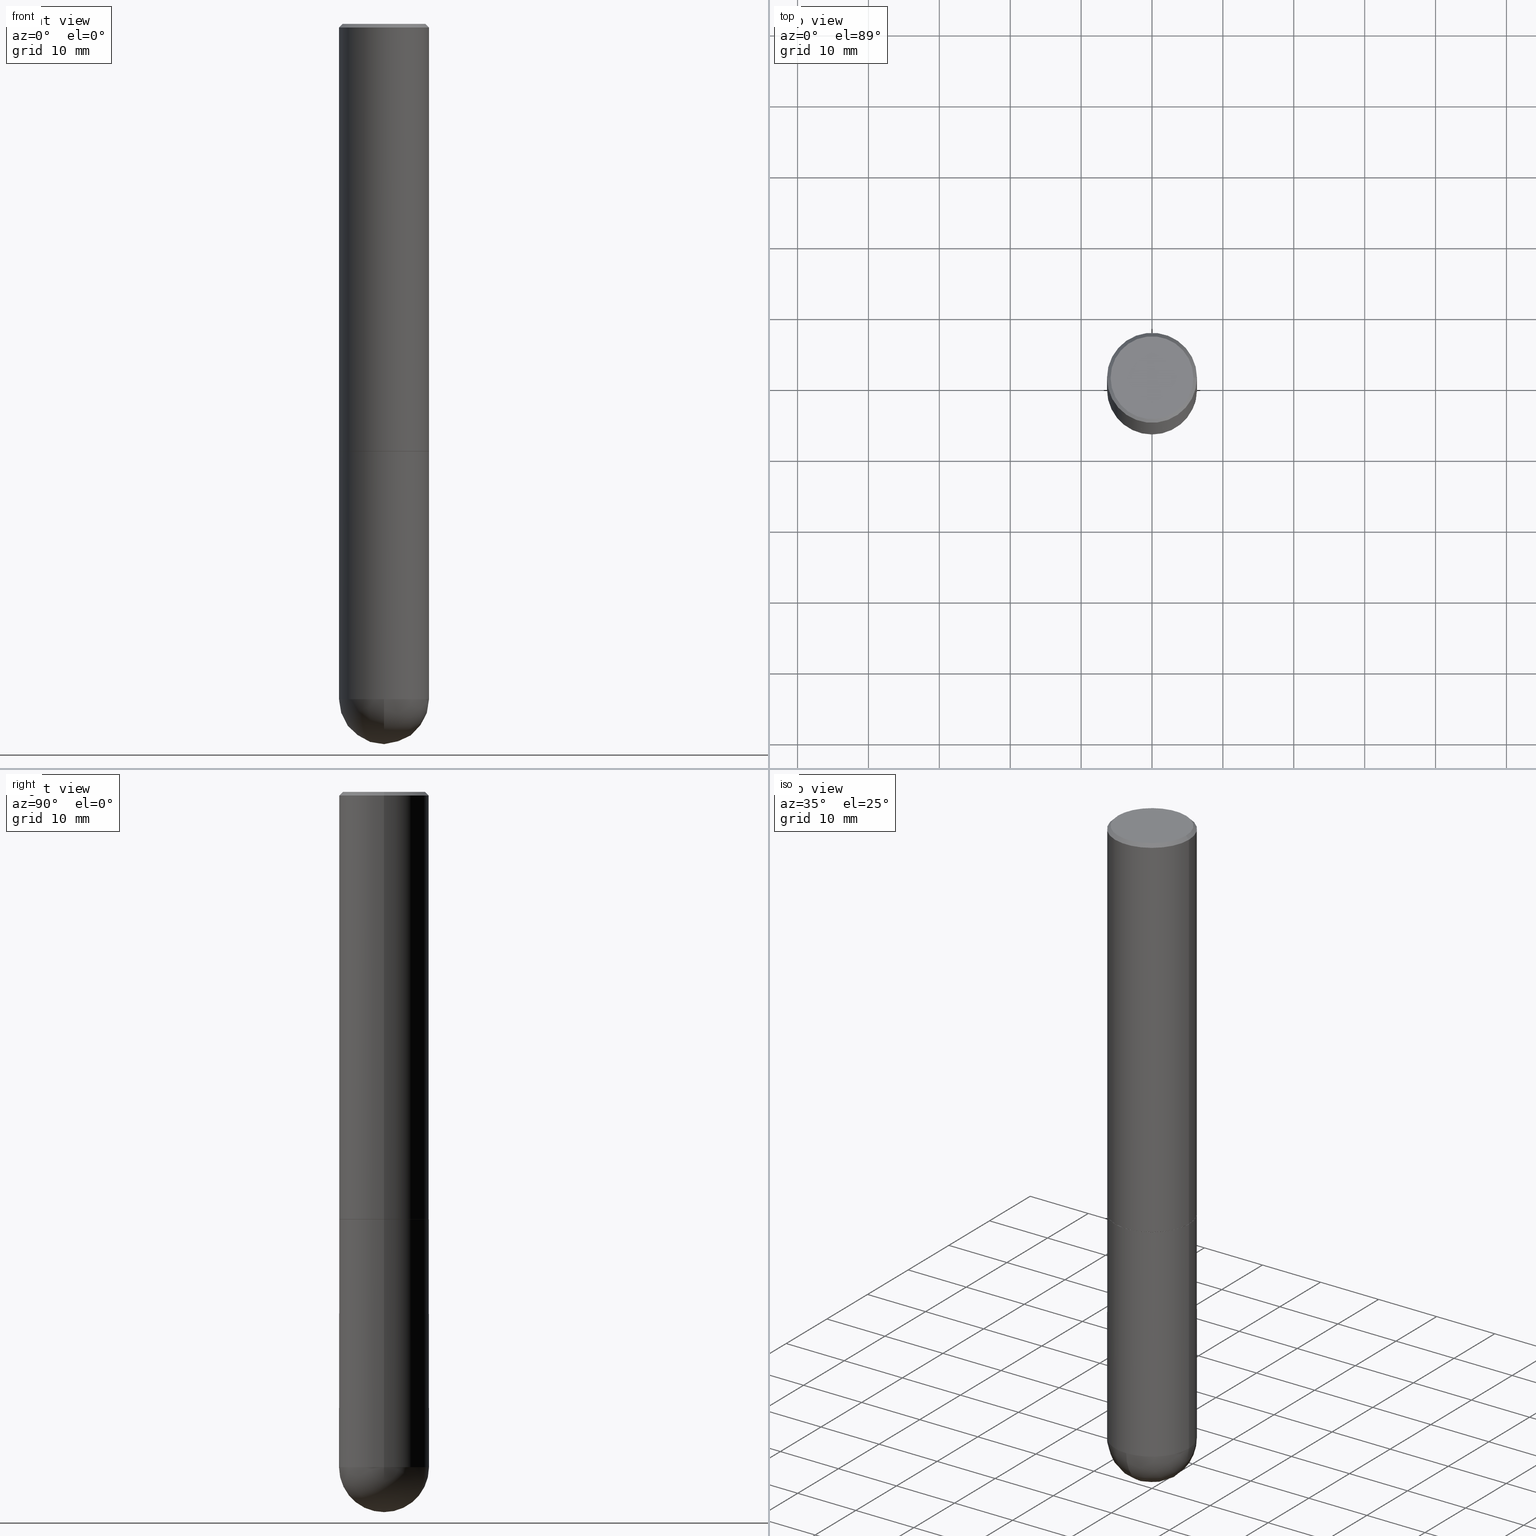
[diagram: canonical four-view strip — front | top / right | iso, engineering-drawing reading convention]
A machine part, canonical four-view strip (front | top / right | iso — engineering-drawing reading convention). The complete STEP part file that produces these views, byte-faithful:
ISO-10303-21;
HEADER;
FILE_DESCRIPTION (( 'STEP AP203' ),
    '1' );
FILE_NAME ('34981.STEP',
    '2024-02-21T18:40:19',
    ( '' ),
    ( '' ),
    'SwSTEP 2.0',
    'SolidWorks 2023',
    '' );
FILE_SCHEMA (( 'CONFIG_CONTROL_DESIGN' ));
ENDSEC;

DATA;
#1 = APPLICATION_CONTEXT ( 'configuration controlled 3d designs of mechanical parts and assemblies' ) ;
#2 = AXIS2_PLACEMENT_3D ( 'NONE', #28, #349, #103 ) ;
#3 = AXIS2_PLACEMENT_3D ( 'NONE', #6, #135, #264 ) ;
#4 = DIRECTION ( 'NONE',  ( -2.445468806185136877E-29, 3.491481338843145188E-15, 1.000000000000000000 ) ) ;
#5 = CARTESIAN_POINT ( 'NONE',  ( 4.890937612370287172E-31, -6.982962677686310098E-17, -0.02000000000000005593 ) ) ;
#6 = CARTESIAN_POINT ( 'NONE',  ( 5.807988414689700538E-29, -8.292268179752471696E-15, -2.375000000000000000 ) ) ;
#7 = DIRECTION ( 'NONE',  ( 1.000000000000000000, -6.982962677686269866E-15, 0.000000000000000000 ) ) ;
#8 = ADVANCED_FACE ( 'NONE', ( #51 ), #89, .F. ) ;
#9 = FACE_OUTER_BOUND ( 'NONE', #215, .T. ) ;
#10 = SPHERICAL_SURFACE ( 'NONE', #214, 0.2500000000000001110 ) ;
#11 = COORDINATED_UNIVERSAL_TIME_OFFSET ( 5, 0, .BEHIND. ) ;
#12 = CONICAL_SURFACE ( 'NONE', #263, 0.2500000000000000000, 0.7853981633974471688 ) ;
#13 = CIRCLE ( 'NONE', #245, 0.2500000000000001110 ) ;
#14 = DIRECTION ( 'NONE',  ( 1.000000000000000000, -6.982962677686269866E-15, 0.000000000000000000 ) ) ;
#15 = EDGE_CURVE ( 'NONE', #24, #277, #364, .T. ) ;
#16 = CC_DESIGN_DATE_AND_TIME_ASSIGNMENT ( #32, #130, ( #154 ) ) ;
#17 = LINE ( 'NONE', #145, #344 ) ;
#18 = AXIS2_PLACEMENT_3D ( 'NONE', #321, #35, #33 ) ;
#19 = DIRECTION ( 'NONE',  ( 2.438088387897960049E-29, -3.491481338843145188E-15, -1.000000000000000000 ) ) ;
#20 = CIRCLE ( 'NONE', #273, 0.2500000000000001110 ) ;
#21 = VERTEX_POINT ( 'NONE', #189 ) ;
#22 = CARTESIAN_POINT ( 'NONE',  ( 0.2500000000000000000, -1.784954126219746189E-15, -0.02000000000000005593 ) ) ;
#23 = UNCERTAINTY_MEASURE_WITH_UNIT (LENGTH_MEASURE( 1.000000000000000082E-05 ), #56, 'distance_accuracy_value', 'NONE');
#24 = VERTEX_POINT ( 'NONE', #155 ) ;
#25 = DIRECTION ( 'NONE',  ( 0.7071067811865466846, -7.319954787623252890E-15, -0.7071067811865483499 ) ) ;
#26 = EDGE_LOOP ( 'NONE', ( #236, #116, #88, #86 ) ) ;
#27 = CARTESIAN_POINT ( 'NONE',  ( 0.000000000000000000, 0.000000000000000000, 0.000000000000000000 ) ) ;
#28 = CARTESIAN_POINT ( 'NONE',  ( 5.805542945883513814E-29, -8.288776698413627111E-15, -2.373999999999999666 ) ) ;
#29 = ORIENTED_EDGE ( 'NONE', *, *, #300, .F. ) ;
#30 = DIRECTION ( 'NONE',  ( 1.000000000000000000, -6.982962677686262766E-15, 0.000000000000000000 ) ) ;
#31 = CARTESIAN_POINT ( 'NONE',  ( 0.2500000000000001110, -1.745740669421567664E-15, 1.219044193948984649E-29 ) ) ;
#32 = DATE_AND_TIME ( #319, #304 ) ;
#33 = DIRECTION ( 'NONE',  ( 1.000000000000000000, -6.982962677686266711E-15, 4.876176775795935793E-29 ) ) ;
#34 = AXIS2_PLACEMENT_3D ( 'NONE', #27, #345, #67 ) ;
#35 = DIRECTION ( 'NONE',  ( -2.445468806185136597E-29, 3.491481338843145583E-15, 1.000000000000000000 ) ) ;
#36 = FACE_OUTER_BOUND ( 'NONE', #81, .T. ) ;
#37 = CARTESIAN_POINT ( 'NONE',  ( 0.2489999999999999991, -1.003102588649635236E-14, -2.375000000000000000 ) ) ;
#38 = FACE_OUTER_BOUND ( 'NONE', #246, .T. ) ;
#39 = DATE_AND_TIME ( #352, #79 ) ;
#40 = AXIS2_PLACEMENT_3D ( 'NONE', #409, #318, #157 ) ;
#41 = DIRECTION ( 'NONE',  ( -1.000000000000000000, 6.982962677686266711E-15, 0.000000000000000000 ) ) ;
#42 = EDGE_CURVE ( 'NONE', #370, #277, #146, .T. ) ;
#43 = DIRECTION ( 'NONE',  ( 1.000000000000000000, -6.982962677686262766E-15, 0.000000000000000000 ) ) ;
#44 = DIRECTION ( 'NONE',  ( 1.000000000000000000, -6.982962677686267499E-15, 4.875813741439101456E-29 ) ) ;
#45 = APPROVAL_ROLE ( '' ) ;
#46 = SECURITY_CLASSIFICATION_LEVEL ( 'unclassified' ) ;
#47 = PLANE ( 'NONE',  #398 ) ;
#48 = ORIENTED_EDGE ( 'NONE', *, *, #265, .F. ) ;
#49 = VERTEX_POINT ( 'NONE', #105 ) ;
#50 = VERTEX_POINT ( 'NONE', #131 ) ;
#51 = FACE_OUTER_BOUND ( 'NONE', #317, .T. ) ;
#52 = ADVANCED_FACE ( 'NONE', ( #324 ), #412, .T. ) ;
#53 = VERTEX_POINT ( 'NONE', #63 ) ;
#54 = MANIFOLD_SOLID_BREP ( 'Body-Move/Copy2[1]', #313 ) ;
#55 = EDGE_LOOP ( 'NONE', ( #411, #212, #247, #309, #397 ) ) ;
#56 =( CONVERSION_BASED_UNIT ( 'INCH', #140 ) LENGTH_UNIT ( ) NAMED_UNIT ( #333 ) );
#57 = ORIENTED_EDGE ( 'NONE', *, *, #143, .F. ) ;
#58 = AXIS2_PLACEMENT_3D ( 'NONE', #62, #218, #30 ) ;
#59 = ORIENTED_EDGE ( 'NONE', *, *, #114, .T. ) ;
#60 = PERSON_AND_ORGANIZATION_ROLE ( 'creator' ) ;
#61 = DIRECTION ( 'NONE',  ( -2.445468806185136597E-29, 3.491481338843145583E-15, 1.000000000000000000 ) ) ;
#62 = CARTESIAN_POINT ( 'NONE',  ( 9.170508023194262238E-29, -1.309305502066179741E-14, -3.750000000000000000 ) ) ;
#63 = CARTESIAN_POINT ( 'NONE',  ( -0.2500000000000000000, -8.916304760806884090E-15, -2.375000000000000000 ) ) ;
#64 = EDGE_CURVE ( 'NONE', #243, #152, #106, .T. ) ;
#65 = AXIS2_PLACEMENT_3D ( 'NONE', #163, #268, #391 ) ;
#66 = DIRECTION ( 'NONE',  ( -2.445468806185136597E-29, 3.491481338843145583E-15, 1.000000000000000000 ) ) ;
#67 = DIRECTION ( 'NONE',  ( 1.000000000000000000, 0.000000000000000000, 0.000000000000000000 ) ) ;
#68 = DIRECTION ( 'NONE',  ( -2.445468806185136877E-29, 3.491481338843145188E-15, 1.000000000000000000 ) ) ;
#69 = PERSON ( 'UNSPECIFIED', 'UNSPECIFIED', 'UNSPECIFIED', ('UNSPECIFIED'), ('UNSPECIFIED'), ('UNSPECIFIED') ) ;
#70 = CARTESIAN_POINT ( 'NONE',  ( 8.839388245280375991E-29, -1.356723738880184771E-14, -3.750000000000000000 ) ) ;
#71 = DIRECTION ( 'NONE',  ( 6.982962677686265922E-15, 1.000000000000000000, -4.370956789862818783E-15 ) ) ;
#72 = CC_DESIGN_APPROVAL ( #238, ( #154 ) ) ;
#73 = LINE ( 'NONE', #296, #394 ) ;
#74 = DIRECTION ( 'NONE',  ( 1.000000000000000000, -6.982962677686262766E-15, 0.000000000000000000 ) ) ;
#75 = DIRECTION ( 'NONE',  ( -7.105427357601001859E-15, -1.000000000000000000, 0.000000000000000000 ) ) ;
#76 = COORDINATED_UNIVERSAL_TIME_OFFSET ( 5, 0, .BEHIND. ) ;
#77 = CARTESIAN_POINT ( 'NONE',  ( 5.807988414689700538E-29, -8.292268179752471696E-15, -2.375000000000000000 ) ) ;
#78 = AXIS2_PLACEMENT_3D ( 'NONE', #100, #221, #347 ) ;
#79 = LOCAL_TIME ( 13, 40, 19.00000000000000000, #224 ) ;
#80 = ORIENTED_EDGE ( 'NONE', *, *, #191, .F. ) ;
#81 = EDGE_LOOP ( 'NONE', ( #48, #274, #80, #338 ) ) ;
#82 = VERTEX_POINT ( 'NONE', #410 ) ;
#83 = EDGE_CURVE ( 'NONE', #343, #53, #379, .T. ) ;
#84 = VERTEX_POINT ( 'NONE', #124 ) ;
#85 = CARTESIAN_POINT ( 'NONE',  ( 8.839388245280375991E-29, -1.356723738880184771E-14, -3.750000000000000000 ) ) ;
#86 = ORIENTED_EDGE ( 'NONE', *, *, #385, .F. ) ;
#87 = CC_DESIGN_SECURITY_CLASSIFICATION ( #299, ( #284 ) ) ;
#88 = ORIENTED_EDGE ( 'NONE', *, *, #104, .F. ) ;
#89 = PLANE ( 'NONE',  #176 ) ;
#90 = ORIENTED_EDGE ( 'NONE', *, *, #374, .F. ) ;
#91 = CC_DESIGN_PERSON_AND_ORGANIZATION_ASSIGNMENT ( #267, #206, ( #299 ) ) ;
#92 = DIRECTION ( 'NONE',  ( -2.445468806185136597E-29, 3.491481338843145583E-15, 1.000000000000000000 ) ) ;
#93 = ADVANCED_FACE ( 'NONE', ( #250 ), #202, .T. ) ;
#94 = EDGE_LOOP ( 'NONE', ( #148, #371, #312, #366, #406 ) ) ;
#95 = CC_DESIGN_PERSON_AND_ORGANIZATION_ASSIGNMENT ( #220, #60, ( #154 ) ) ;
#96 = FACE_OUTER_BOUND ( 'NONE', #150, .T. ) ;
#97 = CIRCLE ( 'NONE', #327, 0.2489999999999999991 ) ;
#98 = ADVANCED_FACE ( 'NONE', ( #96 ), #12, .T. ) ;
#99 = APPROVAL_DATE_TIME ( #123, #238 ) ;
#100 = CARTESIAN_POINT ( 'NONE',  ( 5.805542945883513814E-29, -8.288776698413627111E-15, -2.373999999999999666 ) ) ;
#101 = APPROVAL ( #257, 'UNSPECIFIED' ) ;
#102 = CYLINDRICAL_SURFACE ( 'NONE', #281, 0.2500000000000000000 ) ;
#103 = DIRECTION ( 'NONE',  ( 1.000000000000000000, -6.982962677686264344E-15, 0.000000000000000000 ) ) ;
#104 = EDGE_CURVE ( 'NONE', #152, #243, #230, .T. ) ;
#105 = CARTESIAN_POINT ( 'NONE',  ( 1.745740669421657002E-15, 0.2499999999999867606, -3.750000000000001332 ) ) ;
#106 = CIRCLE ( 'NONE', #2, 0.2500000000000002220 ) ;
#107 = ADVANCED_FACE ( 'NONE', ( #195 ), #320, .T. ) ;
#108 = LINE ( 'NONE', #392, #182 ) ;
#109 = DIRECTION ( 'NONE',  ( -2.445468806185136597E-29, 3.491481338843145583E-15, 1.000000000000000000 ) ) ;
#110 = CARTESIAN_POINT ( 'NONE',  ( 9.461445025441403338E-29, -1.442479963852329389E-14, -4.000000000000000888 ) ) ;
#111 = APPROVAL_PERSON_ORGANIZATION ( #159, #101, #283 ) ;
#112 = CARTESIAN_POINT ( 'NONE',  ( -0.2500000000000000000, -8.916304760806885668E-15, -3.750000000000000000 ) ) ;
#113 = CARTESIAN_POINT ( 'NONE',  ( 5.807988414689700538E-29, -8.292268179752471696E-15, -2.375000000000000000 ) ) ;
#114 = EDGE_CURVE ( 'NONE', #243, #277, #162, .T. ) ;
#115 = VERTEX_POINT ( 'NONE', #37 ) ;
#116 = ORIENTED_EDGE ( 'NONE', *, *, #369, .T. ) ;
#117 = CARTESIAN_POINT ( 'NONE',  ( 1.745740669421624462E-15, 0.2499999999999917011, -2.375000000000000888 ) ) ;
#118 = EDGE_LOOP ( 'NONE', ( #122, #211 ) ) ;
#119 = EDGE_CURVE ( 'NONE', #84, #370, #158, .T. ) ;
#120 = ORIENTED_EDGE ( 'NONE', *, *, #175, .F. ) ;
#121 = LOCAL_TIME ( 13, 40, 19.00000000000000000, #11 ) ;
#122 = ORIENTED_EDGE ( 'NONE', *, *, #83, .T. ) ;
#123 = DATE_AND_TIME ( #381, #231 ) ;
#124 = CARTESIAN_POINT ( 'NONE',  ( 0.2299999999999999267, -1.681434332853598617E-15, 5.122214988121642930E-17 ) ) ;
#125 = LINE ( 'NONE', #31, #244 ) ;
#126 = APPROVAL_ROLE ( '' ) ;
#127 = CARTESIAN_POINT ( 'NONE',  ( 0.000000000000000000, 0.000000000000000000, 0.000000000000000000 ) ) ;
#128 = CIRCLE ( 'NONE', #203, 0.2489999999999999991 ) ;
#129 = CARTESIAN_POINT ( 'NONE',  ( 0.2500000000000002220, -1.003451736783519537E-14, -2.373999999999999666 ) ) ;
#130 = DATE_TIME_ROLE ( 'creation_date' ) ;
#131 = CARTESIAN_POINT ( 'NONE',  ( -0.2489999999999999991, -6.517718313361599048E-15, -2.375000000000000000 ) ) ;
#132 = DIRECTION ( 'NONE',  ( -2.445468806185136597E-29, 3.491481338843145583E-15, 1.000000000000000000 ) ) ;
#133 = AXIS2_PLACEMENT_3D ( 'NONE', #192, #92, #279 ) ;
#134 = CIRCLE ( 'NONE', #380, 0.2299999999999999267 ) ;
#135 = DIRECTION ( 'NONE',  ( -2.438088387897960049E-29, 3.491481338843145188E-15, 1.000000000000000000 ) ) ;
#136 = DIRECTION ( 'NONE',  ( 6.982962677686265922E-15, 1.000000000000000000, -4.370956789862818783E-15 ) ) ;
#137 = FACE_OUTER_BOUND ( 'NONE', #400, .T. ) ;
#138 = EDGE_CURVE ( 'NONE', #21, #49, #367, .T. ) ;
#139 = DIRECTION ( 'NONE',  ( 1.000000000000000000, -6.982962677686262766E-15, 0.000000000000000000 ) ) ;
#140 = LENGTH_MEASURE_WITH_UNIT ( LENGTH_MEASURE( 0.02539999999999999897 ), #174 );
#141 = EDGE_CURVE ( 'NONE', #277, #370, #251, .T. ) ;
#142 = CARTESIAN_POINT ( 'NONE',  ( 0.2489999999999999991, -1.003102588649635236E-14, -2.375000000000000000 ) ) ;
#143 = EDGE_CURVE ( 'NONE', #152, #370, #125, .T. ) ;
#144 = EDGE_LOOP ( 'NONE', ( #90, #375, #307, #185 ) ) ;
#145 = CARTESIAN_POINT ( 'NONE',  ( -0.2489999999999999991, -6.523016767709821450E-15, -2.375000000000000000 ) ) ;
#146 = CIRCLE ( 'NONE', #133, 0.2500000000000000000 ) ;
#147 = CIRCLE ( 'NONE', #405, 0.2500000000000000000 ) ;
#148 = ORIENTED_EDGE ( 'NONE', *, *, #293, .T. ) ;
#149 = ORIENTED_EDGE ( 'NONE', *, *, #119, .T. ) ;
#150 = EDGE_LOOP ( 'NONE', ( #249, #29, #216, #276 ) ) ;
#151 = AXIS2_PLACEMENT_3D ( 'NONE', #255, #61, #383 ) ;
#152 = VERTEX_POINT ( 'NONE', #129 ) ;
#153 = APPROVAL_PERSON_ORGANIZATION ( #164, #238, #126 ) ;
#154 = PRODUCT_DEFINITION ( 'UNKNOWN', '', #284, #302 ) ;
#155 = CARTESIAN_POINT ( 'NONE',  ( -0.2299999999999999267, 1.640996229256272519E-15, 5.122214988119358314E-17 ) ) ;
#156 =( NAMED_UNIT ( * ) PLANE_ANGLE_UNIT ( ) SI_UNIT ( $, .RADIAN. ) );
#157 = DIRECTION ( 'NONE',  ( 1.000000000000000000, -6.982962677686266711E-15, 0.000000000000000000 ) ) ;
#158 = LINE ( 'NONE', #282, #342 ) ;
#159 = PERSON_AND_ORGANIZATION ( #69, #219 ) ;
#160 = AXIS2_PLACEMENT_3D ( 'NONE', #205, #172, #44 ) ;
#161 = AXIS2_PLACEMENT_3D ( 'NONE', #272, #387, #43 ) ;
#162 = LINE ( 'NONE', #286, #237 ) ;
#163 = CARTESIAN_POINT ( 'NONE',  ( 0.000000000000000000, 0.000000000000000000, 0.000000000000000000 ) ) ;
#164 = PERSON_AND_ORGANIZATION ( #69, #219 ) ;
#165 = DIRECTION ( 'NONE',  ( -2.445468806185136597E-29, 3.491481338843145583E-15, 1.000000000000000000 ) ) ;
#166 = ADVANCED_FACE ( 'NONE', ( #254 ), #102, .T. ) ;
#167 = APPROVAL_DATE_TIME ( #269, #378 ) ;
#168 = AXIS2_PLACEMENT_3D ( 'NONE', #127, #258, #315 ) ;
#169 = AXIS2_PLACEMENT_3D ( 'NONE', #395, #66, #74 ) ;
#170 = CARTESIAN_POINT ( 'NONE',  ( 9.170508023194262238E-29, -1.309305502066179741E-14, -3.750000000000000000 ) ) ;
#171 = DATE_TIME_ROLE ( 'classification_date' ) ;
#172 = DIRECTION ( 'NONE',  ( -2.445468806185136597E-29, 3.491481338843145583E-15, 1.000000000000000000 ) ) ;
#173 = DIRECTION ( 'NONE',  ( -2.445468806185136877E-29, 3.491481338843145188E-15, 1.000000000000000000 ) ) ;
#174 =( LENGTH_UNIT ( ) NAMED_UNIT ( * ) SI_UNIT ( $, .METRE. ) );
#175 = EDGE_CURVE ( 'NONE', #84, #24, #181, .T. ) ;
#176 = AXIS2_PLACEMENT_3D ( 'NONE', #308, #19, #335 ) ;
#177 = CIRCLE ( 'NONE', #169, 0.2500000000000000000 ) ;
#178 = ADVANCED_FACE ( 'NONE', ( #9 ), #350, .T. ) ;
#179 = DIRECTION ( 'NONE',  ( 2.438088387897960049E-29, -3.491481338843145188E-15, -1.000000000000000000 ) ) ;
#180 = ORIENTED_EDGE ( 'NONE', *, *, #300, .T. ) ;
#181 = CIRCLE ( 'NONE', #160, 0.2299999999999999267 ) ;
#182 = VECTOR ( 'NONE', #173, 39.37007874015748143 ) ;
#183 = CARTESIAN_POINT ( 'NONE',  ( -0.2500000000000000000, 1.675911042644703577E-15, -0.02000000000000005593 ) ) ;
#184 = EDGE_LOOP ( 'NONE', ( #209, #408, #310, #241 ) ) ;
#185 = ORIENTED_EDGE ( 'NONE', *, *, #233, .F. ) ;
#186 = ORIENTED_EDGE ( 'NONE', *, *, #369, .F. ) ;
#187 = ORIENTED_EDGE ( 'NONE', *, *, #104, .T. ) ;
#188 = ORIENTED_EDGE ( 'NONE', *, *, #385, .T. ) ;
#189 = CARTESIAN_POINT ( 'NONE',  ( 0.2500000000000000000, -1.243840226962870281E-14, -3.750000000000000000 ) ) ;
#190 = ORIENTED_EDGE ( 'NONE', *, *, #42, .T. ) ;
#191 = EDGE_CURVE ( 'NONE', #217, #82, #298, .T. ) ;
#192 = CARTESIAN_POINT ( 'NONE',  ( 4.890937612370287172E-31, -6.982962677686310098E-17, -0.02000000000000005593 ) ) ;
#193 = COORDINATED_UNIVERSAL_TIME_OFFSET ( 5, 0, .BEHIND. ) ;
#194 = ADVANCED_FACE ( 'NONE', ( #137 ), #223, .T. ) ;
#195 = FACE_OUTER_BOUND ( 'NONE', #94, .T. ) ;
#196 = DIRECTION ( 'NONE',  ( 1.000000000000000000, -6.982962677686269866E-15, 0.000000000000000000 ) ) ;
#197 = APPLICATION_PROTOCOL_DEFINITION ( 'international standard', 'config_control_design', 1994, #303 ) ;
#198 = CARTESIAN_POINT ( 'NONE',  ( 5.807988414689700538E-29, -8.292268179752471696E-15, -2.375000000000000000 ) ) ;
#199 = DIRECTION ( 'NONE',  ( -1.000000000000000000, 6.982962677686265922E-15, -4.883557194083113462E-29 ) ) ;
#200 = MANIFOLD_SOLID_BREP ( 'Body-Move/Copy2[2]', #360 ) ;
#201 = CARTESIAN_POINT ( 'NONE',  ( 5.807988414689700538E-29, -8.292268179752471696E-15, -2.375000000000000000 ) ) ;
#202 = CONICAL_SURFACE ( 'NONE', #386, 0.2489999999999999991, 0.7853981633973970977 ) ;
#203 = AXIS2_PLACEMENT_3D ( 'NONE', #201, #357, #7 ) ;
#204 = DIRECTION ( 'NONE',  ( -2.445468806185136877E-29, 3.491481338843145188E-15, 1.000000000000000000 ) ) ;
#205 = CARTESIAN_POINT ( 'NONE',  ( -1.252621697202263706E-45, 1.788411804456536750E-31, 5.122214988120493535E-17 ) ) ;
#206 = PERSON_AND_ORGANIZATION_ROLE ( 'classification_officer' ) ;
#207 = DIRECTION ( 'NONE',  ( 1.000000000000000000, -6.982962677686269866E-15, 0.000000000000000000 ) ) ;
#208 = AXIS2_PLACEMENT_3D ( 'NONE', #70, #325, #71 ) ;
#209 = ORIENTED_EDGE ( 'NONE', *, *, #114, .F. ) ;
#210 = ORIENTED_EDGE ( 'NONE', *, *, #64, .F. ) ;
#211 = ORIENTED_EDGE ( 'NONE', *, *, #332, .T. ) ;
#212 = ORIENTED_EDGE ( 'NONE', *, *, #191, .T. ) ;
#213 = ORIENTED_EDGE ( 'NONE', *, *, #15, .F. ) ;
#214 = AXIS2_PLACEMENT_3D ( 'NONE', #355, #199, #136 ) ;
#215 = EDGE_LOOP ( 'NONE', ( #120, #149, #190, #213 ) ) ;
#216 = ORIENTED_EDGE ( 'NONE', *, *, #15, .T. ) ;
#217 = VERTEX_POINT ( 'NONE', #112 ) ;
#218 = DIRECTION ( 'NONE',  ( -2.445468806185136597E-29, 3.491481338843145583E-15, 1.000000000000000000 ) ) ;
#219 = ORGANIZATION ( 'UNSPECIFIED', 'UNSPECIFIED', '' ) ;
#220 = PERSON_AND_ORGANIZATION ( #69, #219 ) ;
#221 = DIRECTION ( 'NONE',  ( -2.445468806185136597E-29, 3.491481338843145583E-15, 1.000000000000000000 ) ) ;
#222 = CARTESIAN_POINT ( 'NONE',  ( 0.000000000000000000, 0.000000000000000000, 0.000000000000000000 ) ) ;
#223 = CYLINDRICAL_SURFACE ( 'NONE', #65, 0.2500000000000001110 ) ;
#224 = COORDINATED_UNIVERSAL_TIME_OFFSET ( 5, 0, .BEHIND. ) ;
#225 = DIRECTION ( 'NONE',  ( -2.445468806185136597E-29, 3.491481338843145583E-15, 1.000000000000000000 ) ) ;
#226 = CONICAL_SURFACE ( 'NONE', #368, 0.2489999999999999991, 0.7853981633973970977 ) ;
#227 = APPROVAL_STATUS ( 'not_yet_approved' ) ;
#228 = DIRECTION ( 'NONE',  ( 1.000000000000000000, -6.982962677686270655E-15, 0.000000000000000000 ) ) ;
#229 = SPHERICAL_SURFACE ( 'NONE', #208, 0.2500000000000001110 ) ;
#230 = CIRCLE ( 'NONE', #78, 0.2500000000000002220 ) ;
#231 = LOCAL_TIME ( 13, 40, 19.00000000000000000, #252 ) ;
#232 = DIRECTION ( 'NONE',  ( 6.982962677686266711E-15, 1.000000000000000000, 0.000000000000000000 ) ) ;
#233 = EDGE_CURVE ( 'NONE', #82, #21, #389, .T. ) ;
#234 = DIRECTION ( 'NONE',  ( -1.000000000000000000, 7.105427357601001070E-15, -4.926315508542082329E-29 ) ) ;
#235 = DIRECTION ( 'NONE',  ( -2.445468806185136597E-29, 3.491481338843145583E-15, 1.000000000000000000 ) ) ;
#236 = ORIENTED_EDGE ( 'NONE', *, *, #403, .T. ) ;
#237 = VECTOR ( 'NONE', #68, 39.37007874015748143 ) ;
#238 = APPROVAL ( #280, 'UNSPECIFIED' ) ;
#239 = EDGE_CURVE ( 'NONE', #217, #53, #108, .T. ) ;
#240 = LINE ( 'NONE', #142, #331 ) ;
#241 = ORIENTED_EDGE ( 'NONE', *, *, #141, .F. ) ;
#242 = ORIENTED_EDGE ( 'NONE', *, *, #42, .F. ) ;
#243 = VERTEX_POINT ( 'NONE', #329 ) ;
#244 = VECTOR ( 'NONE', #4, 39.37007874015748143 ) ;
#245 = AXIS2_PLACEMENT_3D ( 'NONE', #85, #234, #75 ) ;
#246 = EDGE_LOOP ( 'NONE', ( #340, #305 ) ) ;
#247 = ORIENTED_EDGE ( 'NONE', *, *, #233, .T. ) ;
#248 = PRODUCT ( '34981', '34981', '', ( #372 ) ) ;
#249 = ORIENTED_EDGE ( 'NONE', *, *, #119, .F. ) ;
#250 = FACE_OUTER_BOUND ( 'NONE', #402, .T. ) ;
#251 = CIRCLE ( 'NONE', #40, 0.2500000000000000000 ) ;
#252 = COORDINATED_UNIVERSAL_TIME_OFFSET ( 5, 0, .BEHIND. ) ;
#253 = DIRECTION ( 'NONE',  ( 2.445468806185136597E-29, -3.491481338843145583E-15, -1.000000000000000000 ) ) ;
#254 = FACE_OUTER_BOUND ( 'NONE', #55, .T. ) ;
#255 = CARTESIAN_POINT ( 'NONE',  ( 5.807988414689699417E-29, -8.292268179752470118E-15, -2.375000000000000000 ) ) ;
#256 = CC_DESIGN_PERSON_AND_ORGANIZATION_ASSIGNMENT ( #297, #388, ( #284 ) ) ;
#257 = APPROVAL_STATUS ( 'not_yet_approved' ) ;
#258 = DIRECTION ( 'NONE',  ( -2.445468806185136597E-29, 3.491481338843145583E-15, 1.000000000000000000 ) ) ;
#259 =( NAMED_UNIT ( * ) SI_UNIT ( $, .STERADIAN. ) SOLID_ANGLE_UNIT ( ) );
#260 = ADVANCED_BREP_SHAPE_REPRESENTATION ( '34981', ( #54, #200, #34 ), #290 ) ;
#261 = DIRECTION ( 'NONE',  ( 1.000000000000000000, -6.982962677686266711E-15, 4.876176775795935793E-29 ) ) ;
#262 = PERSON_AND_ORGANIZATION ( #69, #219 ) ;
#263 = AXIS2_PLACEMENT_3D ( 'NONE', #354, #253, #382 ) ;
#264 = DIRECTION ( 'NONE',  ( 1.000000000000000000, -6.982962677686265922E-15, 4.876176775795935793E-29 ) ) ;
#265 = EDGE_CURVE ( 'NONE', #341, #49, #20, .T. ) ;
#266 = DIRECTION ( 'NONE',  ( 1.000000000000000000, -6.982962677686267499E-15, 4.875813741439101456E-29 ) ) ;
#267 = PERSON_AND_ORGANIZATION ( #69, #219 ) ;
#268 = DIRECTION ( 'NONE',  ( -2.445468806185136597E-29, 3.491481338843145583E-15, 1.000000000000000000 ) ) ;
#269 = DATE_AND_TIME ( #292, #121 ) ;
#270 = CC_DESIGN_PERSON_AND_ORGANIZATION_ASSIGNMENT ( #376, #285, ( #248 ) ) ;
#271 = CC_DESIGN_APPROVAL ( #378, ( #299 ) ) ;
#272 = CARTESIAN_POINT ( 'NONE',  ( 9.170508023194262238E-29, -1.309305502066179741E-14, -3.750000000000000000 ) ) ;
#273 = AXIS2_PLACEMENT_3D ( 'NONE', #351, #288, #232 ) ;
#274 = ORIENTED_EDGE ( 'NONE', *, *, #374, .T. ) ;
#275 = DIRECTION ( 'NONE',  ( -0.7071067811865112684, 7.493145998870223209E-15, 0.7071067811865837660 ) ) ;
#276 = ORIENTED_EDGE ( 'NONE', *, *, #141, .T. ) ;
#277 = VERTEX_POINT ( 'NONE', #363 ) ;
#278 = VECTOR ( 'NONE', #373, 39.37007874015748143 ) ;
#279 = DIRECTION ( 'NONE',  ( 1.000000000000000000, -6.982962677686266711E-15, 0.000000000000000000 ) ) ;
#280 = APPROVAL_STATUS ( 'not_yet_approved' ) ;
#281 = AXIS2_PLACEMENT_3D ( 'NONE', #222, #348, #261 ) ;
#282 = CARTESIAN_POINT ( 'NONE',  ( 0.2500000000000000000, -1.784954126219746189E-15, -0.02000000000000005593 ) ) ;
#283 = APPROVAL_ROLE ( '' ) ;
#284 = PRODUCT_DEFINITION_FORMATION_WITH_SPECIFIED_SOURCE ( 'ANY', '', #248, .NOT_KNOWN. ) ;
#285 = PERSON_AND_ORGANIZATION_ROLE ( 'design_owner' ) ;
#286 = CARTESIAN_POINT ( 'NONE',  ( -0.2500000000000001110, 1.776356839400251254E-15, -1.229733772563727146E-29 ) ) ;
#287 = ADVANCED_FACE ( 'NONE', ( #291 ), #229, .T. ) ;
#288 = DIRECTION ( 'NONE',  ( 1.000000000000000000, -6.982962677686265922E-15, 4.883557194083112340E-29 ) ) ;
#289 = PLANE ( 'NONE',  #3 ) ;
#290 =( GEOMETRIC_REPRESENTATION_CONTEXT ( 3 ) GLOBAL_UNCERTAINTY_ASSIGNED_CONTEXT ( ( #23 ) ) GLOBAL_UNIT_ASSIGNED_CONTEXT ( ( #56, #156, #259 ) ) REPRESENTATION_CONTEXT ( 'NONE', 'WORKASPACE' ) );
#291 = FACE_OUTER_BOUND ( 'NONE', #144, .T. ) ;
#292 = CALENDAR_DATE ( 2024, 21, 2 ) ;
#293 = EDGE_CURVE ( 'NONE', #49, #217, #177, .T. ) ;
#294 = FACE_OUTER_BOUND ( 'NONE', #26, .T. ) ;
#295 = PERSON_AND_ORGANIZATION_ROLE ( 'creator' ) ;
#296 = CARTESIAN_POINT ( 'NONE',  ( 0.2500000000000000000, -1.745740669421566678E-15, 1.219044193948983948E-29 ) ) ;
#297 = PERSON_AND_ORGANIZATION ( #69, #219 ) ;
#298 = CIRCLE ( 'NONE', #336, 0.2500000000000000000 ) ;
#299 = SECURITY_CLASSIFICATION ( '', '', #46 ) ;
#300 = EDGE_CURVE ( 'NONE', #24, #84, #134, .T. ) ;
#301 = DIRECTION ( 'NONE',  ( -1.000000000000000000, 6.982962677686265922E-15, -4.876176775795935793E-29 ) ) ;
#302 = DESIGN_CONTEXT ( 'detailed design', #1, 'design' ) ;
#303 = APPLICATION_CONTEXT ( 'configuration controlled 3d designs of mechanical parts and assemblies' ) ;
#304 = LOCAL_TIME ( 13, 40, 19.00000000000000000, #193 ) ;
#305 = ORIENTED_EDGE ( 'NONE', *, *, #337, .F. ) ;
#306 = ADVANCED_FACE ( 'NONE', ( #36 ), #10, .T. ) ;
#307 = ORIENTED_EDGE ( 'NONE', *, *, #138, .F. ) ;
#308 = CARTESIAN_POINT ( 'NONE',  ( 1.606081415867840870E-15, 0.2299999999999999267, -7.774296329933208332E-16 ) ) ;
#309 = ORIENTED_EDGE ( 'NONE', *, *, #314, .T. ) ;
#310 = ORIENTED_EDGE ( 'NONE', *, *, #143, .T. ) ;
#311 = CC_DESIGN_DATE_AND_TIME_ASSIGNMENT ( #328, #171, ( #299 ) ) ;
#312 = ORIENTED_EDGE ( 'NONE', *, *, #83, .F. ) ;
#313 = CLOSED_SHELL ( 'NONE', ( #107, #306, #287, #407, #166 ) ) ;
#314 = EDGE_CURVE ( 'NONE', #21, #343, #73, .T. ) ;
#315 = DIRECTION ( 'NONE',  ( 1.000000000000000000, -6.982962677686267499E-15, 4.876176775795936353E-29 ) ) ;
#316 = ADVANCED_FACE ( 'NONE', ( #38 ), #289, .F. ) ;
#317 = EDGE_LOOP ( 'NONE', ( #180, #339 ) ) ;
#318 = DIRECTION ( 'NONE',  ( -2.445468806185136597E-29, 3.491481338843145583E-15, 1.000000000000000000 ) ) ;
#319 = CALENDAR_DATE ( 2024, 21, 2 ) ;
#320 = CYLINDRICAL_SURFACE ( 'NONE', #18, 0.2500000000000000000 ) ;
#321 = CARTESIAN_POINT ( 'NONE',  ( 0.000000000000000000, 0.000000000000000000, 0.000000000000000000 ) ) ;
#322 = CARTESIAN_POINT ( 'NONE',  ( -1.252621697202263706E-45, 1.788411804456536750E-31, 5.122214988120493535E-17 ) ) ;
#323 = APPLICATION_PROTOCOL_DEFINITION ( 'international standard', 'config_control_design', 1994, #1 ) ;
#324 = FACE_OUTER_BOUND ( 'NONE', #184, .T. ) ;
#325 = DIRECTION ( 'NONE',  ( -1.000000000000000000, 6.982962677686265922E-15, -4.883557194083113462E-29 ) ) ;
#326 = DIRECTION ( 'NONE',  ( 2.445468806185136597E-29, -3.491481338843145583E-15, -1.000000000000000000 ) ) ;
#327 = AXIS2_PLACEMENT_3D ( 'NONE', #113, #235, #207 ) ;
#328 = DATE_AND_TIME ( #330, #365 ) ;
#329 = CARTESIAN_POINT ( 'NONE',  ( -0.2500000000000002220, -2.402946323194990795E-15, -2.373999999999999666 ) ) ;
#330 = CALENDAR_DATE ( 2024, 21, 2 ) ;
#331 = VECTOR ( 'NONE', #334, 39.37007874015748143 ) ;
#332 = EDGE_CURVE ( 'NONE', #53, #343, #147, .T. ) ;
#333 = DIMENSIONAL_EXPONENTS ( 1.000000000000000000, 0.000000000000000000, 0.000000000000000000, 0.000000000000000000, 0.000000000000000000, 0.000000000000000000, 0.000000000000000000 ) ;
#334 = DIRECTION ( 'NONE',  ( 0.7071067811865112684, -2.468850131081876830E-15, 0.7071067811865837660 ) ) ;
#335 = DIRECTION ( 'NONE',  ( -1.000000000000000000, 6.982962677686265922E-15, -4.876176775795935793E-29 ) ) ;
#336 = AXIS2_PLACEMENT_3D ( 'NONE', #170, #132, #139 ) ;
#337 = EDGE_CURVE ( 'NONE', #50, #115, #128, .T. ) ;
#338 = ORIENTED_EDGE ( 'NONE', *, *, #293, .F. ) ;
#339 = ORIENTED_EDGE ( 'NONE', *, *, #175, .T. ) ;
#340 = ORIENTED_EDGE ( 'NONE', *, *, #403, .F. ) ;
#341 = VERTEX_POINT ( 'NONE', #110 ) ;
#342 = VECTOR ( 'NONE', #25, 39.37007874015748143 ) ;
#343 = VERTEX_POINT ( 'NONE', #359 ) ;
#344 = VECTOR ( 'NONE', #275, 39.37007874015748143 ) ;
#345 = DIRECTION ( 'NONE',  ( 0.000000000000000000, 0.000000000000000000, 1.000000000000000000 ) ) ;
#346 = ADVANCED_FACE ( 'NONE', ( #294 ), #226, .T. ) ;
#347 = DIRECTION ( 'NONE',  ( 1.000000000000000000, -6.982962677686264344E-15, 0.000000000000000000 ) ) ;
#348 = DIRECTION ( 'NONE',  ( -2.445468806185136597E-29, 3.491481338843145583E-15, 1.000000000000000000 ) ) ;
#349 = DIRECTION ( 'NONE',  ( -2.445468806185136597E-29, 3.491481338843145583E-15, 1.000000000000000000 ) ) ;
#350 = CONICAL_SURFACE ( 'NONE', #404, 0.2500000000000000000, 0.7853981633974471688 ) ;
#351 = CARTESIAN_POINT ( 'NONE',  ( 8.839388245280375991E-29, -1.356723738880184771E-14, -3.750000000000000000 ) ) ;
#352 = CALENDAR_DATE ( 2024, 21, 2 ) ;
#353 = APPROVAL_PERSON_ORGANIZATION ( #262, #378, #45 ) ;
#354 = CARTESIAN_POINT ( 'NONE',  ( 4.890937612370287172E-31, -6.982962677686310098E-17, -0.02000000000000005593 ) ) ;
#355 = CARTESIAN_POINT ( 'NONE',  ( 8.839388245280375991E-29, -1.356723738880184771E-14, -3.750000000000000000 ) ) ;
#356 = PERSON_AND_ORGANIZATION ( #69, #219 ) ;
#357 = DIRECTION ( 'NONE',  ( -2.445468806185136597E-29, 3.491481338843145583E-15, 1.000000000000000000 ) ) ;
#358 = SHAPE_DEFINITION_REPRESENTATION ( #377, #260 ) ;
#359 = CARTESIAN_POINT ( 'NONE',  ( 0.2500000000000000000, -1.003800884917403837E-14, -2.375000000000000000 ) ) ;
#360 = CLOSED_SHELL ( 'NONE', ( #346, #194, #178, #98, #52, #93, #316, #8 ) ) ;
#361 = CC_DESIGN_APPROVAL ( #101, ( #284 ) ) ;
#362 = PRODUCT_RELATED_PRODUCT_CATEGORY ( 'detail', '', ( #248 ) ) ;
#363 = CARTESIAN_POINT ( 'NONE',  ( -0.2500000000000000000, 1.675911042644703577E-15, -0.02000000000000005593 ) ) ;
#364 = LINE ( 'NONE', #183, #278 ) ;
#365 = LOCAL_TIME ( 13, 40, 19.00000000000000000, #76 ) ;
#366 = ORIENTED_EDGE ( 'NONE', *, *, #314, .F. ) ;
#367 = CIRCLE ( 'NONE', #58, 0.2500000000000000000 ) ;
#368 = AXIS2_PLACEMENT_3D ( 'NONE', #77, #396, #14 ) ;
#369 = EDGE_CURVE ( 'NONE', #50, #243, #17, .T. ) ;
#370 = VERTEX_POINT ( 'NONE', #22 ) ;
#371 = ORIENTED_EDGE ( 'NONE', *, *, #239, .T. ) ;
#372 = MECHANICAL_CONTEXT ( 'NONE', #303, 'mechanical' ) ;
#373 = DIRECTION ( 'NONE',  ( -0.7071067811865466846, 2.468850131082247989E-15, -0.7071067811865483499 ) ) ;
#374 = EDGE_CURVE ( 'NONE', #341, #82, #13, .T. ) ;
#375 = ORIENTED_EDGE ( 'NONE', *, *, #265, .T. ) ;
#376 = PERSON_AND_ORGANIZATION ( #69, #219 ) ;
#377 = PRODUCT_DEFINITION_SHAPE ( 'NONE', 'NONE',  #154 ) ;
#378 = APPROVAL ( #227, 'UNSPECIFIED' ) ;
#379 = CIRCLE ( 'NONE', #151, 0.2500000000000000000 ) ;
#380 = AXIS2_PLACEMENT_3D ( 'NONE', #322, #165, #266 ) ;
#381 = CALENDAR_DATE ( 2024, 21, 2 ) ;
#382 = DIRECTION ( 'NONE',  ( -1.000000000000000000, 6.982962677686266711E-15, 0.000000000000000000 ) ) ;
#383 = DIRECTION ( 'NONE',  ( 1.000000000000000000, -6.982962677686270655E-15, 0.000000000000000000 ) ) ;
#384 = CC_DESIGN_PERSON_AND_ORGANIZATION_ASSIGNMENT ( #356, #295, ( #284 ) ) ;
#385 = EDGE_CURVE ( 'NONE', #115, #152, #240, .T. ) ;
#386 = AXIS2_PLACEMENT_3D ( 'NONE', #198, #225, #196 ) ;
#387 = DIRECTION ( 'NONE',  ( -2.445468806185136597E-29, 3.491481338843145583E-15, 1.000000000000000000 ) ) ;
#388 = PERSON_AND_ORGANIZATION_ROLE ( 'design_supplier' ) ;
#389 = CIRCLE ( 'NONE', #161, 0.2500000000000000000 ) ;
#390 = CARTESIAN_POINT ( 'NONE',  ( 5.807988414689699417E-29, -8.292268179752470118E-15, -2.375000000000000000 ) ) ;
#391 = DIRECTION ( 'NONE',  ( 1.000000000000000000, -6.982962677686267499E-15, 4.876176775795936353E-29 ) ) ;
#392 = CARTESIAN_POINT ( 'NONE',  ( -0.2500000000000000000, 1.776356839400250465E-15, -1.229733772563726445E-29 ) ) ;
#393 = APPROVAL_DATE_TIME ( #39, #101 ) ;
#394 = VECTOR ( 'NONE', #204, 39.37007874015748143 ) ;
#395 = CARTESIAN_POINT ( 'NONE',  ( 9.170508023194262238E-29, -1.309305502066179741E-14, -3.750000000000000000 ) ) ;
#396 = DIRECTION ( 'NONE',  ( -2.445468806185136597E-29, 3.491481338843145583E-15, 1.000000000000000000 ) ) ;
#397 = ORIENTED_EDGE ( 'NONE', *, *, #332, .F. ) ;
#398 = AXIS2_PLACEMENT_3D ( 'NONE', #117, #179, #301 ) ;
#399 = ORIENTED_EDGE ( 'NONE', *, *, #337, .T. ) ;
#400 = EDGE_LOOP ( 'NONE', ( #187, #59, #242, #57 ) ) ;
#401 = FACE_OUTER_BOUND ( 'NONE', #118, .T. ) ;
#402 = EDGE_LOOP ( 'NONE', ( #186, #399, #188, #210 ) ) ;
#403 = EDGE_CURVE ( 'NONE', #115, #50, #97, .T. ) ;
#404 = AXIS2_PLACEMENT_3D ( 'NONE', #5, #326, #41 ) ;
#405 = AXIS2_PLACEMENT_3D ( 'NONE', #390, #109, #228 ) ;
#406 = ORIENTED_EDGE ( 'NONE', *, *, #138, .T. ) ;
#407 = ADVANCED_FACE ( 'NONE', ( #401 ), #47, .F. ) ;
#408 = ORIENTED_EDGE ( 'NONE', *, *, #64, .T. ) ;
#409 = CARTESIAN_POINT ( 'NONE',  ( 4.890937612370287172E-31, -6.982962677686310098E-17, -0.02000000000000005593 ) ) ;
#410 = CARTESIAN_POINT ( 'NONE',  ( -1.776356839400160732E-15, -0.2500000000000133782, -3.749999999999999112 ) ) ;
#411 = ORIENTED_EDGE ( 'NONE', *, *, #239, .F. ) ;
#412 = CYLINDRICAL_SURFACE ( 'NONE', #168, 0.2500000000000001110 ) ;
ENDSEC;
END-ISO-10303-21;
